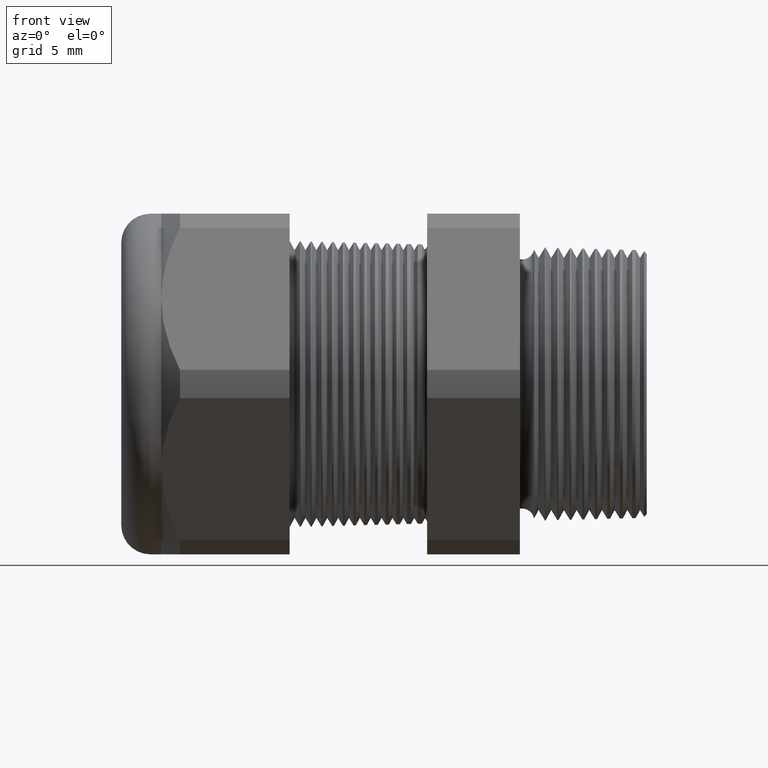
[diagram: clean part render]
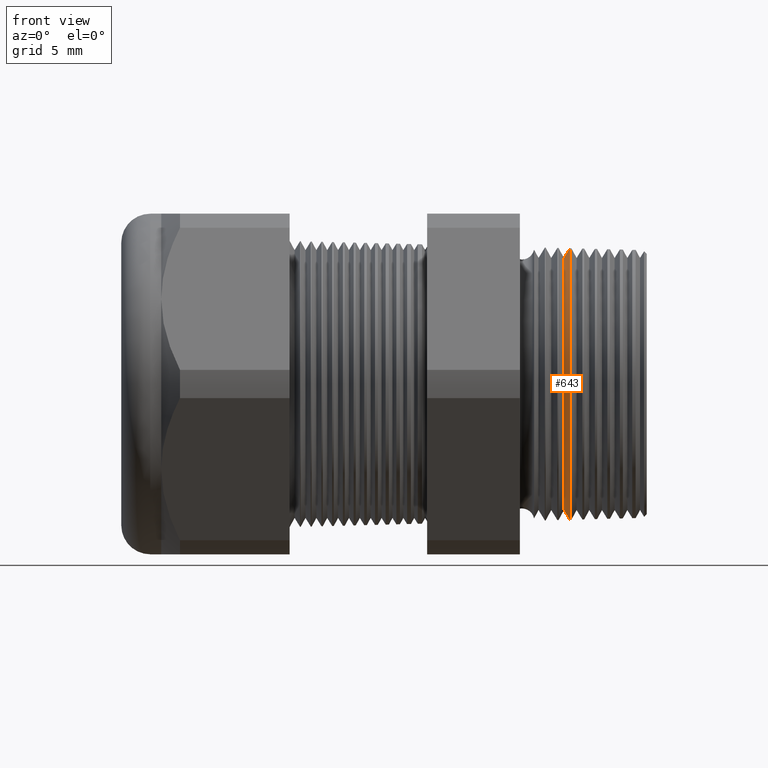
[diagram: same view with one face highlighted and labeled with its STEP entity id]
A machine part, front view. The second image highlights one B-rep face of the part: STEP entity #643.
In plain terms, the highlighted conical surface has half-angle 58.5 deg.
Its self-contained STEP definition (entity closure, byte-faithful):
#289 = VERTEX_POINT ( 'NONE', #2348 ) ;
#290 = VERTEX_POINT ( 'NONE', #2347 ) ;
#331 = EDGE_CURVE ( 'NONE', #353, #289, #2451, .T. ) ;
#339 = VERTEX_POINT ( 'NONE', #2493 ) ;
#353 = VERTEX_POINT ( 'NONE', #2468 ) ;
#406 = EDGE_CURVE ( 'NONE', #290, #339, #2623, .T. ) ;
#643 = ADVANCED_FACE ( 'NONE', ( #2941 ), #2940, .T. ) ;
#644 = EDGE_LOOP ( 'NONE', ( #645, #646, #647, #648 ) ) ;
#645 = ORIENTED_EDGE ( 'NONE', *, *, #331, .F. ) ;
#646 = ORIENTED_EDGE ( 'NONE', *, *, #664, .T. ) ;
#647 = ORIENTED_EDGE ( 'NONE', *, *, #406, .T. ) ;
#648 = ORIENTED_EDGE ( 'NONE', *, *, #1205, .T. ) ;
#664 = EDGE_CURVE ( 'NONE', #353, #290, #2977, .T. ) ;
#1205 = EDGE_CURVE ( 'NONE', #339, #289, #3902, .T. ) ;
#2347 = CARTESIAN_POINT ( 'NONE',  ( -0.1884707356790751300, 4.430091848659464200E-017, -0.3479174816500062400 ) ) ;
#2348 = CARTESIAN_POINT ( 'NONE',  ( -0.1720291532523846000, 0.0000000000000000000, 0.3747477056720697800 ) ) ;
#2448 = DIRECTION ( 'NONE',  ( 0.5224985647159355900, 1.044183048100722300E-016, 0.8526401643541005000 ) ) ;
#2449 = VECTOR ( 'NONE', #2448, 39.37007874015747400 ) ;
#2450 = CARTESIAN_POINT ( 'NONE',  ( -0.1884707356790751300, 4.260760302700881100E-017, 0.3479174816500062400 ) ) ;
#2451 = LINE ( 'NONE', #2450, #2449 ) ;
#2468 = CARTESIAN_POINT ( 'NONE',  ( -0.1884707356790751300, 0.0000000000000000000, 0.3479174816500062400 ) ) ;
#2493 = CARTESIAN_POINT ( 'NONE',  ( -0.1720291532523846000, 4.589335782391146900E-017, -0.3747477056720697800 ) ) ;
#2620 = DIRECTION ( 'NONE',  ( 0.5224985647159355900, 0.0000000000000000000, -0.8526401643541005000 ) ) ;
#2621 = VECTOR ( 'NONE', #2620, 39.37007874015747400 ) ;
#2622 = CARTESIAN_POINT ( 'NONE',  ( -0.1884707356790751300, 0.0000000000000000000, -0.3479174816500062400 ) ) ;
#2623 = LINE ( 'NONE', #2622, #2621 ) ;
#2936 = DIRECTION ( 'NONE',  ( 0.0000000000000000000, 0.0000000000000000000, -1.000000000000000000 ) ) ;
#2937 = DIRECTION ( 'NONE',  ( 1.000000000000000000, 0.0000000000000000000, 0.0000000000000000000 ) ) ;
#2938 = AXIS2_PLACEMENT_3D ( 'NONE', #2944, #2937, #2936 ) ;
#2940 = CONICAL_SURFACE ( 'NONE', #2938, 0.3479174816500062400, 1.021017612416698500 ) ;
#2941 = FACE_OUTER_BOUND ( 'NONE', #644, .T. ) ;
#2944 = CARTESIAN_POINT ( 'NONE',  ( -0.1884707356790751300, 0.0000000000000000000, 0.0000000000000000000 ) ) ;
#2973 = DIRECTION ( 'NONE',  ( 0.0000000000000000000, 0.0000000000000000000, -1.000000000000000000 ) ) ;
#2974 = DIRECTION ( 'NONE',  ( 1.000000000000000000, 0.0000000000000000000, 0.0000000000000000000 ) ) ;
#2975 = CARTESIAN_POINT ( 'NONE',  ( -0.1884707356790751300, 0.0000000000000000000, 0.0000000000000000000 ) ) ;
#2976 = AXIS2_PLACEMENT_3D ( 'NONE', #2975, #2974, #2973 ) ;
#2977 = CIRCLE ( 'NONE', #2976, 0.3479174816500062400 ) ;
#3898 = DIRECTION ( 'NONE',  ( 0.0000000000000000000, 0.0000000000000000000, -1.000000000000000000 ) ) ;
#3899 = DIRECTION ( 'NONE',  ( -1.000000000000000000, 0.0000000000000000000, 0.0000000000000000000 ) ) ;
#3900 = CARTESIAN_POINT ( 'NONE',  ( -0.1720291532523846000, 0.0000000000000000000, 0.0000000000000000000 ) ) ;
#3901 = AXIS2_PLACEMENT_3D ( 'NONE', #3900, #3899, #3898 ) ;
#3902 = CIRCLE ( 'NONE', #3901, 0.3747477056720697800 ) ;